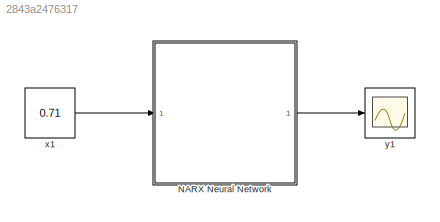
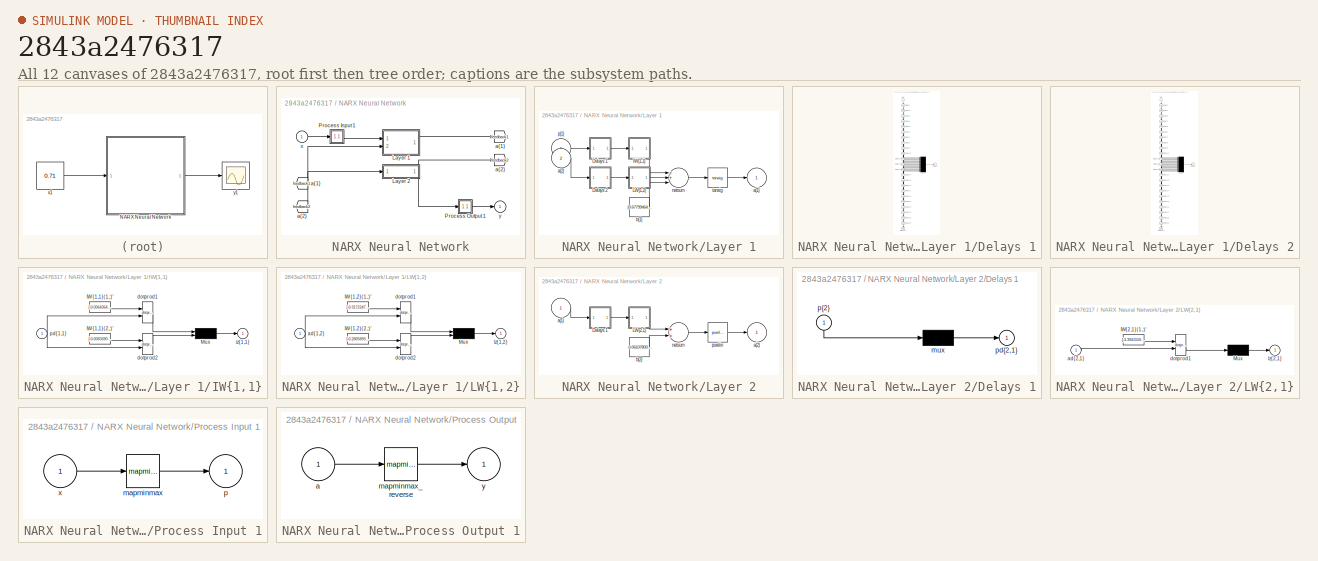
[diagram: thumbnail index - all 12 canvases of the model, root first then tree order]
MODEL slx_2843a2476317
KIND model
CONFIG AbsTol = auto
CONFIG EnableMultiTasking = off
CONFIG FixedStep = auto
CONFIG MaxStep = auto
CONFIG MinStep = auto
CONFIG RelTol = 1e-3
CONFIG SampleTimeConstraint = Unconstrained
CONFIG Solver = VariableStepAuto
CONFIG SolverName = VariableStepAuto
CONFIG StartTime = 0.0
CONFIG StopTime = 10.0
BLOCK [SubSystem] NARX Neural Network
  Ports = [1, 1]
  RequestExecContextInheritance = off
BLOCK [From] NARX Neural Network/ a{1} 
  GotoTag = feedback1
BLOCK [From] NARX Neural Network/ a{2} 
  GotoTag = feedback2
BLOCK [SubSystem] NARX Neural Network/Layer 1
  Ports = [2, 1]
  RequestExecContextInheritance = off
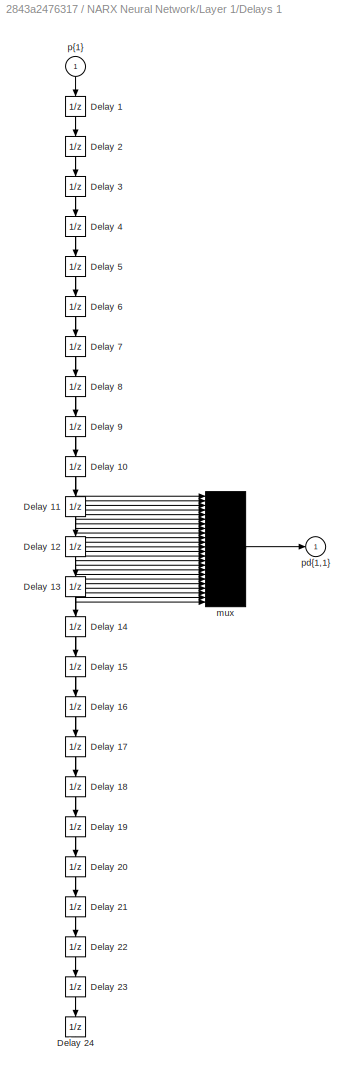
BLOCK [SubSystem] NARX Neural Network/Layer 1/Delays 1
  Ports = [1, 1]
  RequestExecContextInheritance = off
BLOCK [UnitDelay] NARX Neural Network/Layer 1/Delays 1/Delay 1
  InitialCondition = pi_input_1_delayed_1
  SampleTime = 0.01
BLOCK [UnitDelay] NARX Neural Network/Layer 1/Delays 1/Delay 10
  InitialCondition = pi_input_1_delayed_10
  SampleTime = 0.01
BLOCK [UnitDelay] NARX Neural Network/Layer 1/Delays 1/Delay 11
  InitialCondition = pi_input_1_delayed_11
  SampleTime = 0.01
BLOCK [UnitDelay] NARX Neural Network/Layer 1/Delays 1/Delay 12
  InitialCondition = pi_input_1_delayed_12
  SampleTime = 0.01
BLOCK [UnitDelay] NARX Neural Network/Layer 1/Delays 1/Delay 13
  InitialCondition = pi_input_1_delayed_13
  SampleTime = 0.01
BLOCK [UnitDelay] NARX Neural Network/Layer 1/Delays 1/Delay 14
  InitialCondition = pi_input_1_delayed_14
  SampleTime = 0.01
BLOCK [UnitDelay] NARX Neural Network/Layer 1/Delays 1/Delay 15
  InitialCondition = pi_input_1_delayed_15
  SampleTime = 0.01
BLOCK [UnitDelay] NARX Neural Network/Layer 1/Delays 1/Delay 16
  InitialCondition = pi_input_1_delayed_16
  SampleTime = 0.01
BLOCK [UnitDelay] NARX Neural Network/Layer 1/Delays 1/Delay 17
  InitialCondition = pi_input_1_delayed_17
  SampleTime = 0.01
BLOCK [UnitDelay] NARX Neural Network/Layer 1/Delays 1/Delay 18
  InitialCondition = pi_input_1_delayed_18
  SampleTime = 0.01
BLOCK [UnitDelay] NARX Neural Network/Layer 1/Delays 1/Delay 19
  InitialCondition = pi_input_1_delayed_19
  SampleTime = 0.01
BLOCK [UnitDelay] NARX Neural Network/Layer 1/Delays 1/Delay 2
  InitialCondition = pi_input_1_delayed_2
  SampleTime = 0.01
BLOCK [UnitDelay] NARX Neural Network/Layer 1/Delays 1/Delay 20
  InitialCondition = pi_input_1_delayed_20
  SampleTime = 0.01
BLOCK [UnitDelay] NARX Neural Network/Layer 1/Delays 1/Delay 21
  InitialCondition = pi_input_1_delayed_21
  SampleTime = 0.01
BLOCK [UnitDelay] NARX Neural Network/Layer 1/Delays 1/Delay 22
  InitialCondition = pi_input_1_delayed_22
  SampleTime = 0.01
BLOCK [UnitDelay] NARX Neural Network/Layer 1/Delays 1/Delay 23
  InitialCondition = pi_input_1_delayed_23
  SampleTime = 0.01
BLOCK [UnitDelay] NARX Neural Network/Layer 1/Delays 1/Delay 24
  InitialCondition = pi_input_1_delayed_24
  SampleTime = 0.01
BLOCK [UnitDelay] NARX Neural Network/Layer 1/Delays 1/Delay 3
  InitialCondition = pi_input_1_delayed_3
  SampleTime = 0.01
BLOCK [UnitDelay] NARX Neural Network/Layer 1/Delays 1/Delay 4
  InitialCondition = pi_input_1_delayed_4
  SampleTime = 0.01
BLOCK [UnitDelay] NARX Neural Network/Layer 1/Delays 1/Delay 5
  InitialCondition = pi_input_1_delayed_5
  SampleTime = 0.01
BLOCK [UnitDelay] NARX Neural Network/Layer 1/Delays 1/Delay 6
  InitialCondition = pi_input_1_delayed_6
  SampleTime = 0.01
BLOCK [UnitDelay] NARX Neural Network/Layer 1/Delays 1/Delay 7
  InitialCondition = pi_input_1_delayed_7
  SampleTime = 0.01
BLOCK [UnitDelay] NARX Neural Network/Layer 1/Delays 1/Delay 8
  InitialCondition = pi_input_1_delayed_8
  SampleTime = 0.01
BLOCK [UnitDelay] NARX Neural Network/Layer 1/Delays 1/Delay 9
  InitialCondition = pi_input_1_delayed_9
  SampleTime = 0.01
BLOCK [Mux] NARX Neural Network/Layer 1/Delays 1/mux
  Inputs = 24
  Ports = [24, 1]
BLOCK [Outport] NARX Neural Network/Layer 1/Delays 1/pd{1,1}
  IconDisplay = Port number
BLOCK [Inport] NARX Neural Network/Layer 1/Delays 1/p{1}
  IconDisplay = Port number
  PortDimensions = 1
  SampleTime = 0.01
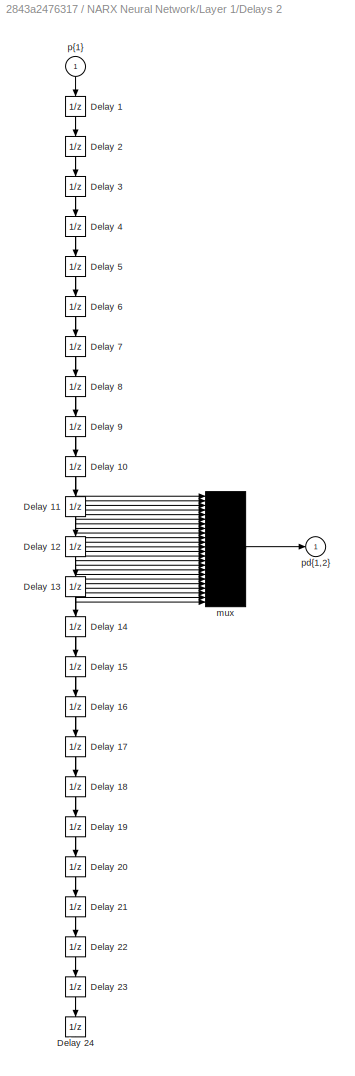
BLOCK [SubSystem] NARX Neural Network/Layer 1/Delays 2
  Ports = [1, 1]
  RequestExecContextInheritance = off
BLOCK [UnitDelay] NARX Neural Network/Layer 1/Delays 2/Delay 1
  InitialCondition = ai_layer_2_delayed_1
  SampleTime = 0.01
BLOCK [UnitDelay] NARX Neural Network/Layer 1/Delays 2/Delay 10
  InitialCondition = ai_layer_2_delayed_10
  SampleTime = 0.01
BLOCK [UnitDelay] NARX Neural Network/Layer 1/Delays 2/Delay 11
  InitialCondition = ai_layer_2_delayed_11
  SampleTime = 0.01
BLOCK [UnitDelay] NARX Neural Network/Layer 1/Delays 2/Delay 12
  InitialCondition = ai_layer_2_delayed_12
  SampleTime = 0.01
BLOCK [UnitDelay] NARX Neural Network/Layer 1/Delays 2/Delay 13
  InitialCondition = ai_layer_2_delayed_13
  SampleTime = 0.01
BLOCK [UnitDelay] NARX Neural Network/Layer 1/Delays 2/Delay 14
  InitialCondition = ai_layer_2_delayed_14
  SampleTime = 0.01
BLOCK [UnitDelay] NARX Neural Network/Layer 1/Delays 2/Delay 15
  InitialCondition = ai_layer_2_delayed_15
  SampleTime = 0.01
BLOCK [UnitDelay] NARX Neural Network/Layer 1/Delays 2/Delay 16
  InitialCondition = ai_layer_2_delayed_16
  SampleTime = 0.01
BLOCK [UnitDelay] NARX Neural Network/Layer 1/Delays 2/Delay 17
  InitialCondition = ai_layer_2_delayed_17
  SampleTime = 0.01
BLOCK [UnitDelay] NARX Neural Network/Layer 1/Delays 2/Delay 18
  InitialCondition = ai_layer_2_delayed_18
  SampleTime = 0.01
BLOCK [UnitDelay] NARX Neural Network/Layer 1/Delays 2/Delay 19
  InitialCondition = ai_layer_2_delayed_19
  SampleTime = 0.01
BLOCK [UnitDelay] NARX Neural Network/Layer 1/Delays 2/Delay 2
  InitialCondition = ai_layer_2_delayed_2
  SampleTime = 0.01
BLOCK [UnitDelay] NARX Neural Network/Layer 1/Delays 2/Delay 20
  InitialCondition = ai_layer_2_delayed_20
  SampleTime = 0.01
BLOCK [UnitDelay] NARX Neural Network/Layer 1/Delays 2/Delay 21
  InitialCondition = ai_layer_2_delayed_21
  SampleTime = 0.01
BLOCK [UnitDelay] NARX Neural Network/Layer 1/Delays 2/Delay 22
  InitialCondition = ai_layer_2_delayed_22
  SampleTime = 0.01
BLOCK [UnitDelay] NARX Neural Network/Layer 1/Delays 2/Delay 23
  InitialCondition = ai_layer_2_delayed_23
  SampleTime = 0.01
BLOCK [UnitDelay] NARX Neural Network/Layer 1/Delays 2/Delay 24
  InitialCondition = ai_layer_2_delayed_24
  SampleTime = 0.01
BLOCK [UnitDelay] NARX Neural Network/Layer 1/Delays 2/Delay 3
  InitialCondition = ai_layer_2_delayed_3
  SampleTime = 0.01
BLOCK [UnitDelay] NARX Neural Network/Layer 1/Delays 2/Delay 4
  InitialCondition = ai_layer_2_delayed_4
  SampleTime = 0.01
BLOCK [UnitDelay] NARX Neural Network/Layer 1/Delays 2/Delay 5
  InitialCondition = ai_layer_2_delayed_5
  SampleTime = 0.01
BLOCK [UnitDelay] NARX Neural Network/Layer 1/Delays 2/Delay 6
  InitialCondition = ai_layer_2_delayed_6
  SampleTime = 0.01
BLOCK [UnitDelay] NARX Neural Network/Layer 1/Delays 2/Delay 7
  InitialCondition = ai_layer_2_delayed_7
  SampleTime = 0.01
BLOCK [UnitDelay] NARX Neural Network/Layer 1/Delays 2/Delay 8
  InitialCondition = ai_layer_2_delayed_8
  SampleTime = 0.01
BLOCK [UnitDelay] NARX Neural Network/Layer 1/Delays 2/Delay 9
  InitialCondition = ai_layer_2_delayed_9
  SampleTime = 0.01
BLOCK [Mux] NARX Neural Network/Layer 1/Delays 2/mux
  Inputs = 24
  Ports = [24, 1]
BLOCK [Outport] NARX Neural Network/Layer 1/Delays 2/pd{1,2}
  IconDisplay = Port number
BLOCK [Inport] NARX Neural Network/Layer 1/Delays 2/p{1}
  IconDisplay = Port number
  PortDimensions = 1
  SampleTime = 0.01
BLOCK [SubSystem] NARX Neural Network/Layer 1/IW{1,1}
  Ports = [1, 1]
  RequestExecContextInheritance = off
BLOCK [Constant] NARX Neural Network/Layer 1/IW{1,1}/IW{1,1}(1,:)'
  Value = [-0.006436442708987642584428368053295343997888267040252685546875;0.00140169951603142457947914767402153302100487053394317626953125;-0.000681409693523656804885202387112030919524841010570526123046875;0.0003201160790143847798168430518472860057954676449298858642578125;-0.0001513794213280902976707931184563449278357438743114471435546875;6.8961673611801828517008094987517097251839004456996917724609375e-05;...<+1255ch>
BLOCK [Constant] NARX Neural Network/Layer 1/IW{1,1}/IW{1,1}(2,:)'
  Value = [-0.0065690554921059400583782661442455719225108623504638671875;0.00102702148279042626728696507854010633309371769428253173828125;-0.000350544296910741486582308024111398481181822717189788818359375;0.00011576563490272293900640310226890505873598158359527587890625;-3.42751704532937590138262640149235949138528667390346527099609375e-05;9.52443658896096986723849020517462804491515271365642547607421875e-06;-...<+1261ch>
BLOCK [Mux] NARX Neural Network/Layer 1/IW{1,1}/Mux
  Inputs = 2
  Ports = [2, 1]
BLOCK [Reference] NARX Neural Network/Layer 1/IW{1,1}/dotprod1  REF=neural/Weight Functions/dotprod
  Ports = [2, 1]
  SourceBlock = neural/Weight Functions/dotprod
  SourceProductBaseCode = Missing
  SourceProductName = MATLAB Runtime - Deep Learning Toolbox
  SourceType = DOTPROD
BLOCK [Reference] NARX Neural Network/Layer 1/IW{1,1}/dotprod2  REF=neural/Weight Functions/dotprod
  Ports = [2, 1]
  SourceBlock = neural/Weight Functions/dotprod
  SourceProductBaseCode = Missing
  SourceProductName = MATLAB Runtime - Deep Learning Toolbox
  SourceType = DOTPROD
BLOCK [Outport] NARX Neural Network/Layer 1/IW{1,1}/iz{1,1}
  IconDisplay = Port number
BLOCK [Inport] NARX Neural Network/Layer 1/IW{1,1}/pd{1,1}
  IconDisplay = Port number
  PortDimensions = 24
  SampleTime = 0.01
BLOCK [SubSystem] NARX Neural Network/Layer 1/LW{1,2}
  Ports = [1, 1]
  RequestExecContextInheritance = off
BLOCK [Constant] NARX Neural Network/Layer 1/LW{1,2}/IW{1,2}(1,:)'
  Value = [-0.317224754155566224245177409102325327694416046142578125;0.1538103647419573893895261562647647224366664886474609375;-0.07376596637277856027825606588521623052656650543212890625;0.034801646337611367998388089972650050185620784759521484375;-0.016159852159399357152125276115839369595050811767578125;0.007124203454993157692831662330945619032718241214752197265625;-0.002937601829765560269153157335608739231...<+1121ch>
BLOCK [Constant] NARX Neural Network/Layer 1/LW{1,2}/IW{1,2}(2,:)'
  Value = [-0.2805893866054984808755534686497412621974945068359375;0.09941700965471876594303779484107508324086666107177734375;-0.03359565261976370231788990849963738583028316497802734375;0.010706247300870407046513577142832218669354915618896484375;-0.0031438629615783797270622823560870529036037623882293701171875;0.00101091409773564240570653538497936096973717212677001953125;-0.0004882008979073758337362265447012...<+1136ch>
BLOCK [Mux] NARX Neural Network/Layer 1/LW{1,2}/Mux
  Inputs = 2
  Ports = [2, 1]
BLOCK [Inport] NARX Neural Network/Layer 1/LW{1,2}/ad{1,2}
  IconDisplay = Port number
  PortDimensions = 24
  SampleTime = 0.01
BLOCK [Reference] NARX Neural Network/Layer 1/LW{1,2}/dotprod1  REF=neural/Weight Functions/dotprod
  Ports = [2, 1]
  SourceBlock = neural/Weight Functions/dotprod
  SourceProductBaseCode = Missing
  SourceProductName = MATLAB Runtime - Deep Learning Toolbox
  SourceType = DOTPROD
BLOCK [Reference] NARX Neural Network/Layer 1/LW{1,2}/dotprod2  REF=neural/Weight Functions/dotprod
  Ports = [2, 1]
  SourceBlock = neural/Weight Functions/dotprod
  SourceProductBaseCode = Missing
  SourceProductName = MATLAB Runtime - Deep Learning Toolbox
  SourceType = DOTPROD
BLOCK [Outport] NARX Neural Network/Layer 1/LW{1,2}/lz{1,2}
  IconDisplay = Port number
BLOCK [Outport] NARX Neural Network/Layer 1/a{1}
  IconDisplay = Port number
  InitialOutput = [0;0]
BLOCK [Inport] NARX Neural Network/Layer 1/a{2} 
  IconDisplay = Port number
  Port = 2
  PortDimensions = 1
  SampleTime = 0.01
BLOCK [Constant] NARX Neural Network/Layer 1/b{1}
  Value = [0.6779946444310629427576486705220304429531097412109375;-0.65047174666768003969963274357724003493785858154296875]
BLOCK [Sum] NARX Neural Network/Layer 1/netsum
  Inputs = 3
  Ports = [3, 1]
BLOCK [Inport] NARX Neural Network/Layer 1/p{1}
  IconDisplay = Port number
  PortDimensions = 1
  SampleTime = 0.01
BLOCK [Reference] NARX Neural Network/Layer 1/tansig  REF=neural/Transfer Functions/tansig
  Ports = [1, 1]
  SourceBlock = neural/Transfer Functions/tansig
  SourceProductBaseCode = Missing
  SourceProductName = MATLAB Runtime - Deep Learning Toolbox
  SourceType = TANSIG
BLOCK [SubSystem] NARX Neural Network/Layer 2
  Ports = [1, 1]
  RequestExecContextInheritance = off
BLOCK [SubSystem] NARX Neural Network/Layer 2/Delays 1
  Ports = [1, 1]
  RequestExecContextInheritance = off
BLOCK [Mux] NARX Neural Network/Layer 2/Delays 1/mux
  Inputs = 1
  Ports = [1, 1]
BLOCK [Outport] NARX Neural Network/Layer 2/Delays 1/pd{2,1}
  IconDisplay = Port number
BLOCK [Inport] NARX Neural Network/Layer 2/Delays 1/p{2}
  IconDisplay = Port number
  PortDimensions = 2
  SampleTime = 0.01
BLOCK [SubSystem] NARX Neural Network/Layer 2/LW{2,1}
  Ports = [1, 1]
  RequestExecContextInheritance = off
BLOCK [Constant] NARX Neural Network/Layer 2/LW{2,1}/IW{2,1}(1,:)'
  Value = [-3.394155053611161321214240160770714282989501953125;-3.6090887785475427307346762972883880138397216796875]
BLOCK [Mux] NARX Neural Network/Layer 2/LW{2,1}/Mux
  Inputs = 1
  Ports = [1, 1]
BLOCK [Inport] NARX Neural Network/Layer 2/LW{2,1}/ad{2,1}
  IconDisplay = Port number
  PortDimensions = 2
  SampleTime = 0.01
BLOCK [Reference] NARX Neural Network/Layer 2/LW{2,1}/dotprod1  REF=neural/Weight Functions/dotprod
  Ports = [2, 1]
  SourceBlock = neural/Weight Functions/dotprod
  SourceProductBaseCode = Missing
  SourceProductName = MATLAB Runtime - Deep Learning Toolbox
  SourceType = DOTPROD
BLOCK [Outport] NARX Neural Network/Layer 2/LW{2,1}/lz{2,1}
  IconDisplay = Port number
BLOCK [Inport] NARX Neural Network/Layer 2/a{1} 
  IconDisplay = Port number
  PortDimensions = 2
  SampleTime = 0.01
BLOCK [Outport] NARX Neural Network/Layer 2/a{2}
  IconDisplay = Port number
  InitialOutput = 0
BLOCK [Constant] NARX Neural Network/Layer 2/b{2}
  Value = -0.061078009886647070814102988833838026039302349090576171875
BLOCK [Sum] NARX Neural Network/Layer 2/netsum
  Inputs = 2
  Ports = [2, 1]
BLOCK [Reference] NARX Neural Network/Layer 2/purelin  REF=neural/Transfer Functions/purelin
  Ports = [1, 1]
  SourceBlock = neural/Transfer Functions/purelin
  SourceProductBaseCode = Missing
  SourceProductName = MATLAB Runtime - Deep Learning Toolbox
  SourceType = PURELIN
BLOCK [SubSystem] NARX Neural Network/Process Input 1
  Ports = [1, 1]
  RequestExecContextInheritance = off
BLOCK [Reference] NARX Neural Network/Process Input 1/mapminmax  REF=neural/Processing Functions/mapminmax
  Ports = [1, 1]
  SourceBlock = neural/Processing Functions/mapminmax
  SourceProductBaseCode = Missing
  SourceProductName = MATLAB Runtime - Deep Learning Toolbox
  SourceType = MAPMINMAX Preprocess
BLOCK [Outport] NARX Neural Network/Process Input 1/p
  IconDisplay = Port number
  PortDimensions = 1
  SampleTime = 0.01
BLOCK [Inport] NARX Neural Network/Process Input 1/x
  IconDisplay = Port number
  PortDimensions = 1
  SampleTime = 0.01
BLOCK [SubSystem] NARX Neural Network/Process Output 1
  Ports = [1, 1]
  RequestExecContextInheritance = off
BLOCK [Inport] NARX Neural Network/Process Output 1/a
  IconDisplay = Port number
  PortDimensions = 1
  SampleTime = 0.01
BLOCK [Reference] NARX Neural Network/Process Output 1/mapminmax_reverse  REF=neural/Processing Functions/mapminmax_reverse
  Ports = [1, 1]
  SourceBlock = neural/Processing Functions/mapminmax_reverse
  SourceProductBaseCode = Missing
  SourceProductName = MATLAB Runtime - Deep Learning Toolbox
  SourceType = MAPMINMAX Reverse Process
BLOCK [Outport] NARX Neural Network/Process Output 1/y
  IconDisplay = Port number
  PortDimensions = 1
  SampleTime = 0.01
BLOCK [Goto] NARX Neural Network/a{1}
  GotoTag = feedback1
BLOCK [Goto] NARX Neural Network/a{2}
  GotoTag = feedback2
BLOCK [Inport] NARX Neural Network/x
  IconDisplay = Port number
  PortDimensions = 1
  SampleTime = 0.01
BLOCK [Outport] NARX Neural Network/y
  IconDisplay = Port number
  InitialOutput = 0
BLOCK [Constant] x1
  SampleTime = 0.01
  Value = 0.71
BLOCK [Scope] y1
  Floating = off
  NumInputPorts = 1
  Ports = [1]
LINE NARX Neural Network/ a{1} :1 -> NARX Neural Network/Layer 2:1
LINE NARX Neural Network/ a{2} :1 -> NARX Neural Network/Layer 1:2
NET NARX Neural Network/Layer 1/Delays 1/Delay 10:1 -> NARX Neural Network/Layer 1/Delays 1/Delay 11:1, NARX Neural Network/Layer 1/Delays 1/mux:10
NET NARX Neural Network/Layer 1/Delays 1/Delay 11:1 -> NARX Neural Network/Layer 1/Delays 1/Delay 12:1, NARX Neural Network/Layer 1/Delays 1/mux:11
NET NARX Neural Network/Layer 1/Delays 1/Delay 12:1 -> NARX Neural Network/Layer 1/Delays 1/Delay 13:1, NARX Neural Network/Layer 1/Delays 1/mux:12
NET NARX Neural Network/Layer 1/Delays 1/Delay 13:1 -> NARX Neural Network/Layer 1/Delays 1/Delay 14:1, NARX Neural Network/Layer 1/Delays 1/mux:13
NET NARX Neural Network/Layer 1/Delays 1/Delay 14:1 -> NARX Neural Network/Layer 1/Delays 1/Delay 15:1, NARX Neural Network/Layer 1/Delays 1/mux:14
NET NARX Neural Network/Layer 1/Delays 1/Delay 15:1 -> NARX Neural Network/Layer 1/Delays 1/Delay 16:1, NARX Neural Network/Layer 1/Delays 1/mux:15
NET NARX Neural Network/Layer 1/Delays 1/Delay 16:1 -> NARX Neural Network/Layer 1/Delays 1/Delay 17:1, NARX Neural Network/Layer 1/Delays 1/mux:16
NET NARX Neural Network/Layer 1/Delays 1/Delay 17:1 -> NARX Neural Network/Layer 1/Delays 1/Delay 18:1, NARX Neural Network/Layer 1/Delays 1/mux:17
NET NARX Neural Network/Layer 1/Delays 1/Delay 18:1 -> NARX Neural Network/Layer 1/Delays 1/Delay 19:1, NARX Neural Network/Layer 1/Delays 1/mux:18
NET NARX Neural Network/Layer 1/Delays 1/Delay 19:1 -> NARX Neural Network/Layer 1/Delays 1/Delay 20:1, NARX Neural Network/Layer 1/Delays 1/mux:19
NET NARX Neural Network/Layer 1/Delays 1/Delay 1:1 -> NARX Neural Network/Layer 1/Delays 1/Delay 2:1, NARX Neural Network/Layer 1/Delays 1/mux:1
NET NARX Neural Network/Layer 1/Delays 1/Delay 20:1 -> NARX Neural Network/Layer 1/Delays 1/Delay 21:1, NARX Neural Network/Layer 1/Delays 1/mux:20
NET NARX Neural Network/Layer 1/Delays 1/Delay 21:1 -> NARX Neural Network/Layer 1/Delays 1/Delay 22:1, NARX Neural Network/Layer 1/Delays 1/mux:21
NET NARX Neural Network/Layer 1/Delays 1/Delay 22:1 -> NARX Neural Network/Layer 1/Delays 1/Delay 23:1, NARX Neural Network/Layer 1/Delays 1/mux:22
NET NARX Neural Network/Layer 1/Delays 1/Delay 23:1 -> NARX Neural Network/Layer 1/Delays 1/Delay 24:1, NARX Neural Network/Layer 1/Delays 1/mux:23
LINE NARX Neural Network/Layer 1/Delays 1/Delay 24:1 -> NARX Neural Network/Layer 1/Delays 1/mux:24
NET NARX Neural Network/Layer 1/Delays 1/Delay 2:1 -> NARX Neural Network/Layer 1/Delays 1/Delay 3:1, NARX Neural Network/Layer 1/Delays 1/mux:2
NET NARX Neural Network/Layer 1/Delays 1/Delay 3:1 -> NARX Neural Network/Layer 1/Delays 1/Delay 4:1, NARX Neural Network/Layer 1/Delays 1/mux:3
NET NARX Neural Network/Layer 1/Delays 1/Delay 4:1 -> NARX Neural Network/Layer 1/Delays 1/Delay 5:1, NARX Neural Network/Layer 1/Delays 1/mux:4
NET NARX Neural Network/Layer 1/Delays 1/Delay 5:1 -> NARX Neural Network/Layer 1/Delays 1/Delay 6:1, NARX Neural Network/Layer 1/Delays 1/mux:5
NET NARX Neural Network/Layer 1/Delays 1/Delay 6:1 -> NARX Neural Network/Layer 1/Delays 1/Delay 7:1, NARX Neural Network/Layer 1/Delays 1/mux:6
NET NARX Neural Network/Layer 1/Delays 1/Delay 7:1 -> NARX Neural Network/Layer 1/Delays 1/Delay 8:1, NARX Neural Network/Layer 1/Delays 1/mux:7
NET NARX Neural Network/Layer 1/Delays 1/Delay 8:1 -> NARX Neural Network/Layer 1/Delays 1/Delay 9:1, NARX Neural Network/Layer 1/Delays 1/mux:8
NET NARX Neural Network/Layer 1/Delays 1/Delay 9:1 -> NARX Neural Network/Layer 1/Delays 1/Delay 10:1, NARX Neural Network/Layer 1/Delays 1/mux:9
LINE NARX Neural Network/Layer 1/Delays 1/mux:1 -> NARX Neural Network/Layer 1/Delays 1/pd{1,1}:1
LINE NARX Neural Network/Layer 1/Delays 1/p{1}:1 -> NARX Neural Network/Layer 1/Delays 1/Delay 1:1
LINE NARX Neural Network/Layer 1/Delays 1:1 -> NARX Neural Network/Layer 1/IW{1,1}:1
NET NARX Neural Network/Layer 1/Delays 2/Delay 10:1 -> NARX Neural Network/Layer 1/Delays 2/Delay 11:1, NARX Neural Network/Layer 1/Delays 2/mux:10
NET NARX Neural Network/Layer 1/Delays 2/Delay 11:1 -> NARX Neural Network/Layer 1/Delays 2/Delay 12:1, NARX Neural Network/Layer 1/Delays 2/mux:11
NET NARX Neural Network/Layer 1/Delays 2/Delay 12:1 -> NARX Neural Network/Layer 1/Delays 2/Delay 13:1, NARX Neural Network/Layer 1/Delays 2/mux:12
NET NARX Neural Network/Layer 1/Delays 2/Delay 13:1 -> NARX Neural Network/Layer 1/Delays 2/Delay 14:1, NARX Neural Network/Layer 1/Delays 2/mux:13
NET NARX Neural Network/Layer 1/Delays 2/Delay 14:1 -> NARX Neural Network/Layer 1/Delays 2/Delay 15:1, NARX Neural Network/Layer 1/Delays 2/mux:14
NET NARX Neural Network/Layer 1/Delays 2/Delay 15:1 -> NARX Neural Network/Layer 1/Delays 2/Delay 16:1, NARX Neural Network/Layer 1/Delays 2/mux:15
NET NARX Neural Network/Layer 1/Delays 2/Delay 16:1 -> NARX Neural Network/Layer 1/Delays 2/Delay 17:1, NARX Neural Network/Layer 1/Delays 2/mux:16
NET NARX Neural Network/Layer 1/Delays 2/Delay 17:1 -> NARX Neural Network/Layer 1/Delays 2/Delay 18:1, NARX Neural Network/Layer 1/Delays 2/mux:17
NET NARX Neural Network/Layer 1/Delays 2/Delay 18:1 -> NARX Neural Network/Layer 1/Delays 2/Delay 19:1, NARX Neural Network/Layer 1/Delays 2/mux:18
NET NARX Neural Network/Layer 1/Delays 2/Delay 19:1 -> NARX Neural Network/Layer 1/Delays 2/Delay 20:1, NARX Neural Network/Layer 1/Delays 2/mux:19
NET NARX Neural Network/Layer 1/Delays 2/Delay 1:1 -> NARX Neural Network/Layer 1/Delays 2/Delay 2:1, NARX Neural Network/Layer 1/Delays 2/mux:1
NET NARX Neural Network/Layer 1/Delays 2/Delay 20:1 -> NARX Neural Network/Layer 1/Delays 2/Delay 21:1, NARX Neural Network/Layer 1/Delays 2/mux:20
NET NARX Neural Network/Layer 1/Delays 2/Delay 21:1 -> NARX Neural Network/Layer 1/Delays 2/Delay 22:1, NARX Neural Network/Layer 1/Delays 2/mux:21
NET NARX Neural Network/Layer 1/Delays 2/Delay 22:1 -> NARX Neural Network/Layer 1/Delays 2/Delay 23:1, NARX Neural Network/Layer 1/Delays 2/mux:22
NET NARX Neural Network/Layer 1/Delays 2/Delay 23:1 -> NARX Neural Network/Layer 1/Delays 2/Delay 24:1, NARX Neural Network/Layer 1/Delays 2/mux:23
LINE NARX Neural Network/Layer 1/Delays 2/Delay 24:1 -> NARX Neural Network/Layer 1/Delays 2/mux:24
NET NARX Neural Network/Layer 1/Delays 2/Delay 2:1 -> NARX Neural Network/Layer 1/Delays 2/Delay 3:1, NARX Neural Network/Layer 1/Delays 2/mux:2
NET NARX Neural Network/Layer 1/Delays 2/Delay 3:1 -> NARX Neural Network/Layer 1/Delays 2/Delay 4:1, NARX Neural Network/Layer 1/Delays 2/mux:3
NET NARX Neural Network/Layer 1/Delays 2/Delay 4:1 -> NARX Neural Network/Layer 1/Delays 2/Delay 5:1, NARX Neural Network/Layer 1/Delays 2/mux:4
NET NARX Neural Network/Layer 1/Delays 2/Delay 5:1 -> NARX Neural Network/Layer 1/Delays 2/Delay 6:1, NARX Neural Network/Layer 1/Delays 2/mux:5
NET NARX Neural Network/Layer 1/Delays 2/Delay 6:1 -> NARX Neural Network/Layer 1/Delays 2/Delay 7:1, NARX Neural Network/Layer 1/Delays 2/mux:6
NET NARX Neural Network/Layer 1/Delays 2/Delay 7:1 -> NARX Neural Network/Layer 1/Delays 2/Delay 8:1, NARX Neural Network/Layer 1/Delays 2/mux:7
NET NARX Neural Network/Layer 1/Delays 2/Delay 8:1 -> NARX Neural Network/Layer 1/Delays 2/Delay 9:1, NARX Neural Network/Layer 1/Delays 2/mux:8
NET NARX Neural Network/Layer 1/Delays 2/Delay 9:1 -> NARX Neural Network/Layer 1/Delays 2/Delay 10:1, NARX Neural Network/Layer 1/Delays 2/mux:9
LINE NARX Neural Network/Layer 1/Delays 2/mux:1 -> NARX Neural Network/Layer 1/Delays 2/pd{1,2}:1
LINE NARX Neural Network/Layer 1/Delays 2/p{1}:1 -> NARX Neural Network/Layer 1/Delays 2/Delay 1:1
LINE NARX Neural Network/Layer 1/Delays 2:1 -> NARX Neural Network/Layer 1/LW{1,2}:1
LINE NARX Neural Network/Layer 1/IW{1,1}/IW{1,1}(1,:)':1 -> NARX Neural Network/Layer 1/IW{1,1}/dotprod1:1
LINE NARX Neural Network/Layer 1/IW{1,1}/IW{1,1}(2,:)':1 -> NARX Neural Network/Layer 1/IW{1,1}/dotprod2:1
LINE NARX Neural Network/Layer 1/IW{1,1}/Mux:1 -> NARX Neural Network/Layer 1/IW{1,1}/iz{1,1}:1
LINE NARX Neural Network/Layer 1/IW{1,1}/dotprod1:1 -> NARX Neural Network/Layer 1/IW{1,1}/Mux:1
LINE NARX Neural Network/Layer 1/IW{1,1}/dotprod2:1 -> NARX Neural Network/Layer 1/IW{1,1}/Mux:2
NET NARX Neural Network/Layer 1/IW{1,1}/pd{1,1}:1 -> NARX Neural Network/Layer 1/IW{1,1}/dotprod1:2, NARX Neural Network/Layer 1/IW{1,1}/dotprod2:2
LINE NARX Neural Network/Layer 1/IW{1,1}:1 -> NARX Neural Network/Layer 1/netsum:1
LINE NARX Neural Network/Layer 1/LW{1,2}/IW{1,2}(1,:)':1 -> NARX Neural Network/Layer 1/LW{1,2}/dotprod1:1
LINE NARX Neural Network/Layer 1/LW{1,2}/IW{1,2}(2,:)':1 -> NARX Neural Network/Layer 1/LW{1,2}/dotprod2:1
LINE NARX Neural Network/Layer 1/LW{1,2}/Mux:1 -> NARX Neural Network/Layer 1/LW{1,2}/lz{1,2}:1
NET NARX Neural Network/Layer 1/LW{1,2}/ad{1,2}:1 -> NARX Neural Network/Layer 1/LW{1,2}/dotprod1:2, NARX Neural Network/Layer 1/LW{1,2}/dotprod2:2
LINE NARX Neural Network/Layer 1/LW{1,2}/dotprod1:1 -> NARX Neural Network/Layer 1/LW{1,2}/Mux:1
LINE NARX Neural Network/Layer 1/LW{1,2}/dotprod2:1 -> NARX Neural Network/Layer 1/LW{1,2}/Mux:2
LINE NARX Neural Network/Layer 1/LW{1,2}:1 -> NARX Neural Network/Layer 1/netsum:2
LINE NARX Neural Network/Layer 1/a{2} :1 -> NARX Neural Network/Layer 1/Delays 2:1
LINE NARX Neural Network/Layer 1/b{1}:1 -> NARX Neural Network/Layer 1/netsum:3
LINE NARX Neural Network/Layer 1/netsum:1 -> NARX Neural Network/Layer 1/tansig:1
LINE NARX Neural Network/Layer 1/p{1}:1 -> NARX Neural Network/Layer 1/Delays 1:1
LINE NARX Neural Network/Layer 1/tansig:1 -> NARX Neural Network/Layer 1/a{1}:1
LINE NARX Neural Network/Layer 1:1 -> NARX Neural Network/a{1}:1
LINE NARX Neural Network/Layer 2/Delays 1/mux:1 -> NARX Neural Network/Layer 2/Delays 1/pd{2,1}:1
LINE NARX Neural Network/Layer 2/Delays 1/p{2}:1 -> NARX Neural Network/Layer 2/Delays 1/mux:1
LINE NARX Neural Network/Layer 2/Delays 1:1 -> NARX Neural Network/Layer 2/LW{2,1}:1
LINE NARX Neural Network/Layer 2/LW{2,1}/IW{2,1}(1,:)':1 -> NARX Neural Network/Layer 2/LW{2,1}/dotprod1:1
LINE NARX Neural Network/Layer 2/LW{2,1}/Mux:1 -> NARX Neural Network/Layer 2/LW{2,1}/lz{2,1}:1
LINE NARX Neural Network/Layer 2/LW{2,1}/ad{2,1}:1 -> NARX Neural Network/Layer 2/LW{2,1}/dotprod1:2
LINE NARX Neural Network/Layer 2/LW{2,1}/dotprod1:1 -> NARX Neural Network/Layer 2/LW{2,1}/Mux:1
LINE NARX Neural Network/Layer 2/LW{2,1}:1 -> NARX Neural Network/Layer 2/netsum:1
LINE NARX Neural Network/Layer 2/a{1} :1 -> NARX Neural Network/Layer 2/Delays 1:1
LINE NARX Neural Network/Layer 2/b{2}:1 -> NARX Neural Network/Layer 2/netsum:2
LINE NARX Neural Network/Layer 2/netsum:1 -> NARX Neural Network/Layer 2/purelin:1
LINE NARX Neural Network/Layer 2/purelin:1 -> NARX Neural Network/Layer 2/a{2}:1
NET NARX Neural Network/Layer 2:1 -> NARX Neural Network/Process Output 1:1, NARX Neural Network/a{2}:1
LINE NARX Neural Network/Process Input 1/mapminmax:1 -> NARX Neural Network/Process Input 1/p:1
LINE NARX Neural Network/Process Input 1/x:1 -> NARX Neural Network/Process Input 1/mapminmax:1
LINE NARX Neural Network/Process Input 1:1 -> NARX Neural Network/Layer 1:1
LINE NARX Neural Network/Process Output 1/a:1 -> NARX Neural Network/Process Output 1/mapminmax_reverse:1
LINE NARX Neural Network/Process Output 1/mapminmax_reverse:1 -> NARX Neural Network/Process Output 1/y:1
LINE NARX Neural Network/Process Output 1:1 -> NARX Neural Network/y:1
LINE NARX Neural Network/x:1 -> NARX Neural Network/Process Input 1:1
LINE NARX Neural Network:1 -> y1:1
LINE x1:1 -> NARX Neural Network:1
note: NET lines group one-source signal fan-out (src -> all destinations, sorted); 1:1 wires keep LINE
